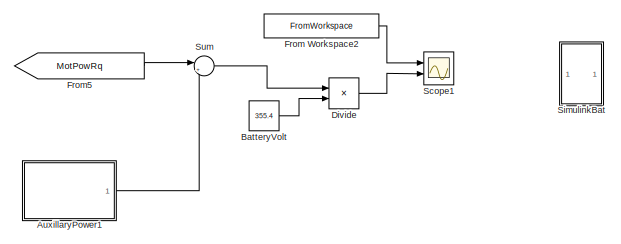
[diagram: root canvas - part 1/6, top left region]
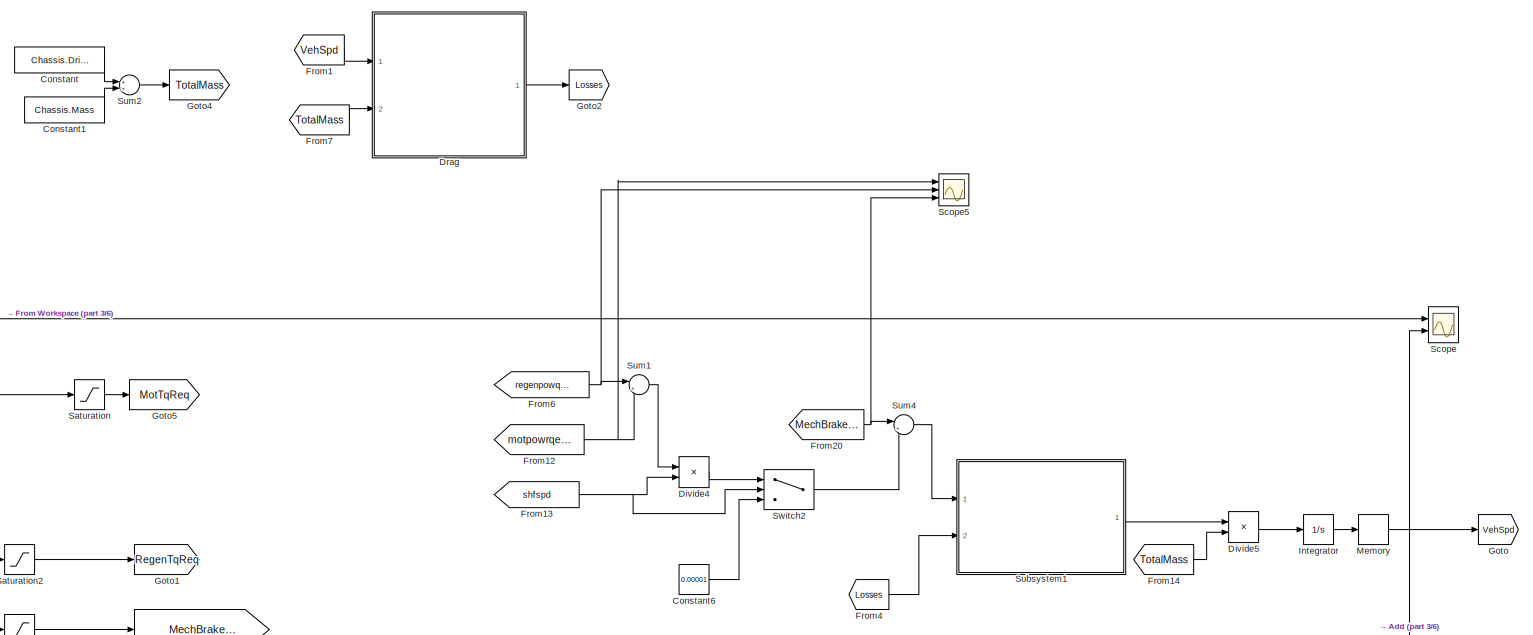
[diagram: root canvas - part 2/6, top center region]
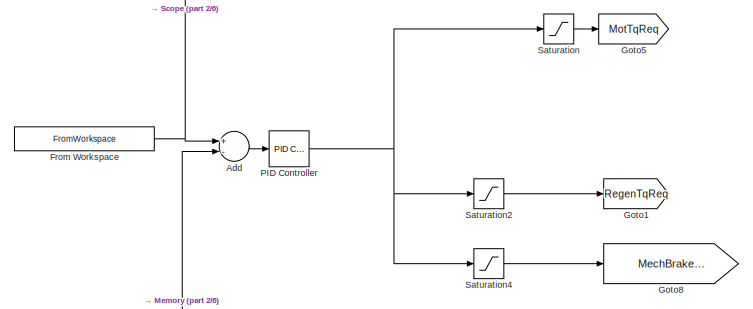
[diagram: root canvas - part 3/6, top left region]
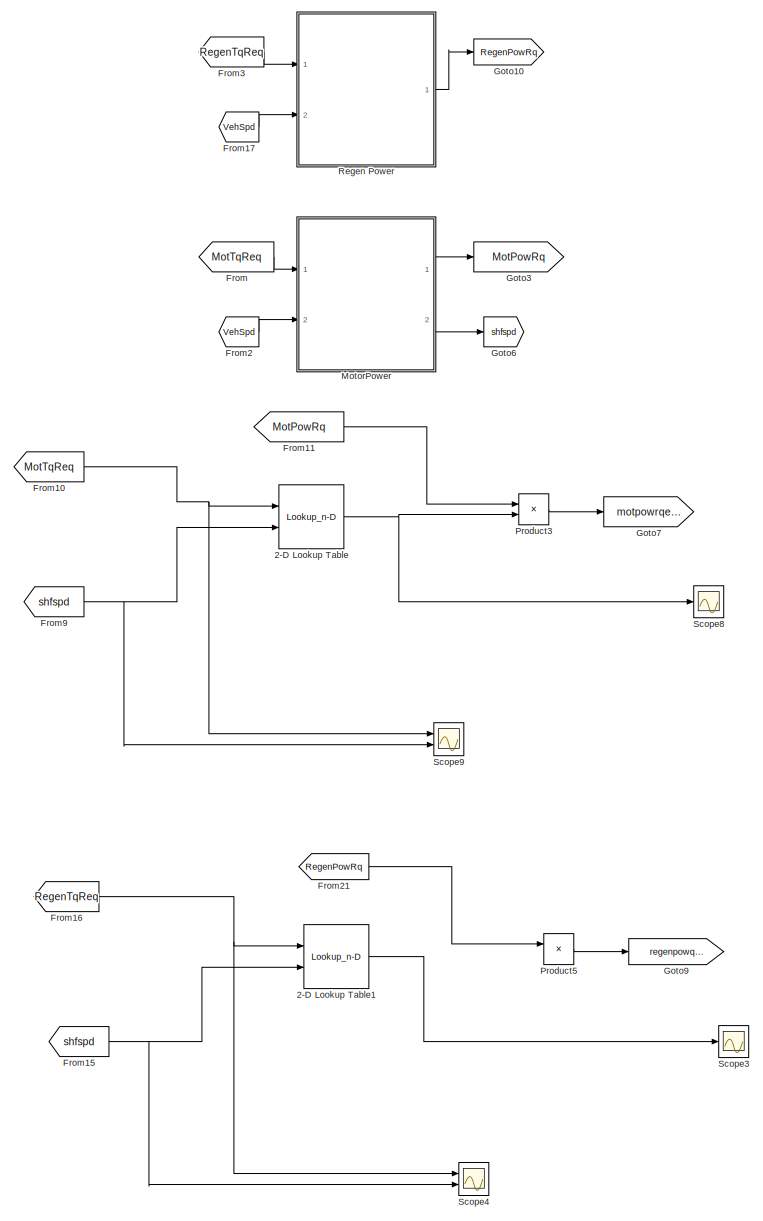
[diagram: root canvas - part 4/6, bottom right region]
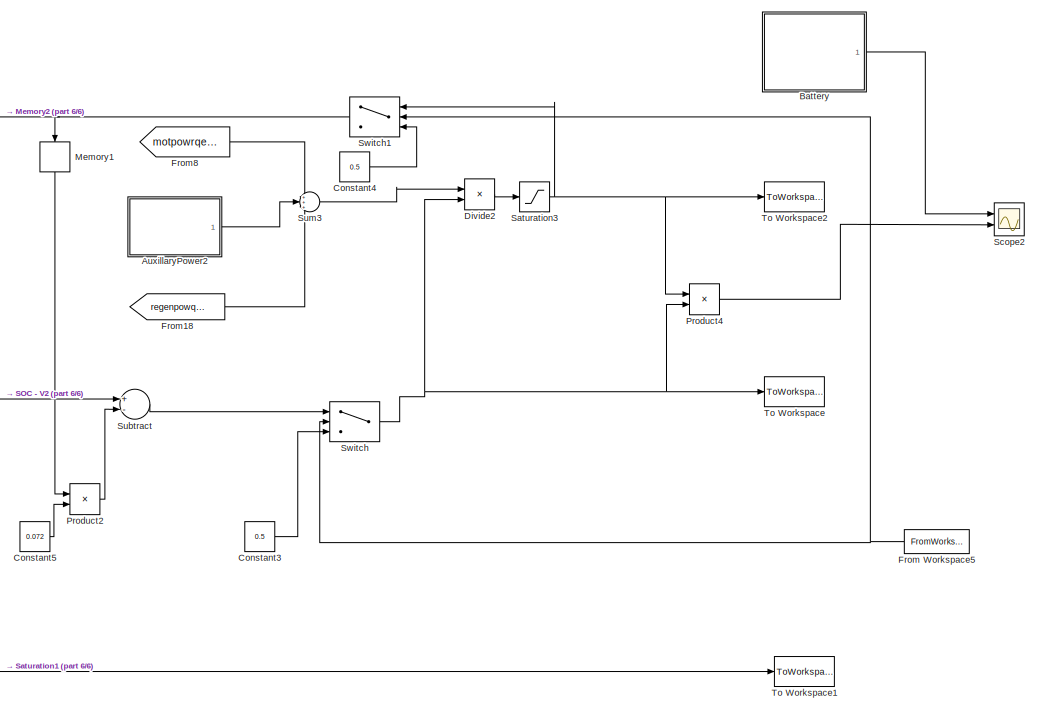
[diagram: root canvas - part 5/6, bottom center region]
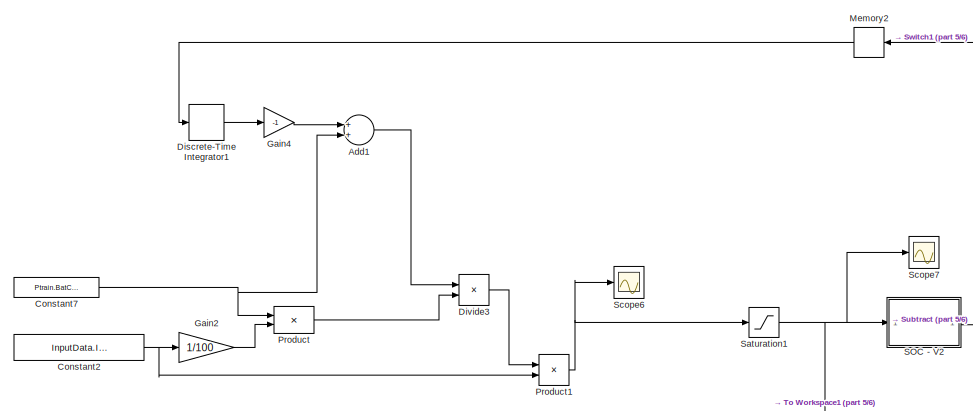
[diagram: root canvas - part 6/6, middle left region]
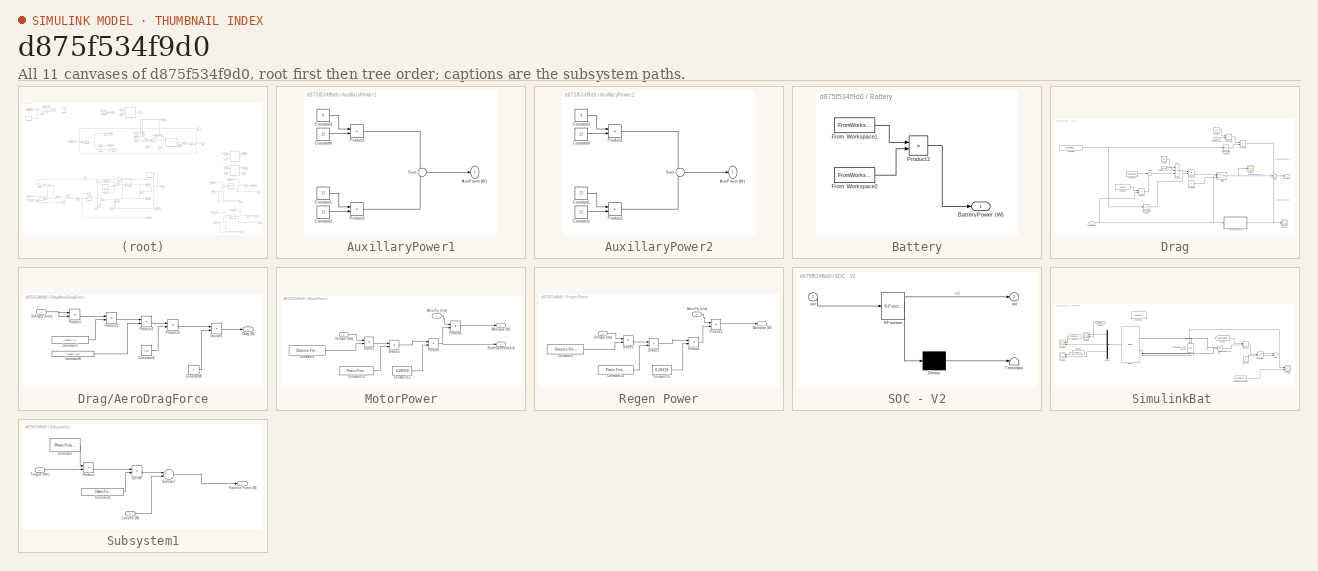
[diagram: thumbnail index - all 11 canvases of the model, root first then tree order]
MODEL slx_d875f534f9d0
KIND model
CONFIG AbsTol = auto
CONFIG EnableMultiTasking = off
CONFIG FixedStep = 0.01
CONFIG MaxStep = auto
CONFIG MinStep = auto
CONFIG RelTol = 1e-3
CONFIG SampleTimeConstraint = Unconstrained
CONFIG Solver = ode3
CONFIG SolverName = ode3
CONFIG StartTime = 0
CONFIG StopTime = InputData.TestData.Time_sec_(end)
BLOCK [Lookup_n-D] 2-D Lookup Table
  BreakpointsForDimension1 = [1:3]
  BreakpointsForDimension1Spacing = 10
  BreakpointsForDimension2 = [1:3]
  BreakpointsForDimension2Spacing = 10
  BreakpointsSpecification = Even spacing
  ExtrapMethod = Clip
  InternalRulePriority = Speed
  Ports = [2, 1]
  RndMeth = Simplest
  Table = Zsmooth1
BLOCK [Lookup_n-D] 2-D Lookup Table1
  BreakpointsForDimension1 = [1:3]
  BreakpointsForDimension1Spacing = 10
  BreakpointsForDimension2 = [1:3]
  BreakpointsForDimension2Spacing = 10
  BreakpointsSpecification = Even spacing
  ExtrapMethod = Clip
  InternalRulePriority = Speed
  Ports = [2, 1]
  RndMeth = Simplest
  Table = Zsmooth1
BLOCK [Sum] Add
  InputSameDT = off
  Inputs = +-
  OutDataTypeStr = Inherit: Inherit via internal rule
  Ports = [2, 1]
  SaturateOnIntegerOverflow = off
BLOCK [Sum] Add1
  InputSameDT = off
  OutDataTypeStr = Inherit: Inherit via internal rule
  Ports = [2, 1]
  SaturateOnIntegerOverflow = off
BLOCK [SubSystem] AuxillaryPower1
  Commented = on
  Ports = [0, 1]
  RequestExecContextInheritance = off
  Variant = off
BLOCK [Outport] AuxillaryPower1/AuxPower (W)
  IconDisplay = Port number
BLOCK [Constant] AuxillaryPower1/Constant1
  Value = 12
BLOCK [Constant] AuxillaryPower1/Constant2
  Value = 12
BLOCK [Constant] AuxillaryPower1/Constant3
  Value = 4
BLOCK [Constant] AuxillaryPower1/Constant4
  Value = 12
BLOCK [Product] AuxillaryPower1/Product1
  InputSameDT = off
  OutDataTypeStr = Inherit: Inherit via internal rule
  Ports = [2, 1]
  RndMeth = Floor
  SaturateOnIntegerOverflow = off
BLOCK [Product] AuxillaryPower1/Product2
  InputSameDT = off
  OutDataTypeStr = Inherit: Inherit via internal rule
  Ports = [2, 1]
  RndMeth = Floor
  SaturateOnIntegerOverflow = off
BLOCK [Sum] AuxillaryPower1/Sum
  IconShape = round
  InputSameDT = off
  Inputs = 2
  OutDataTypeStr = Inherit: Inherit via internal rule
  Ports = [2, 1]
  SaturateOnIntegerOverflow = off
BLOCK [SubSystem] AuxillaryPower2
  Ports = [0, 1]
  RequestExecContextInheritance = off
  Variant = off
BLOCK [Outport] AuxillaryPower2/AuxPower (W)
  IconDisplay = Port number
BLOCK [Constant] AuxillaryPower2/Constant1
  Value = 12
BLOCK [Constant] AuxillaryPower2/Constant2
  Value = 12
BLOCK [Constant] AuxillaryPower2/Constant3
  Value = 4
BLOCK [Constant] AuxillaryPower2/Constant4
  Value = 12
BLOCK [Product] AuxillaryPower2/Product1
  InputSameDT = off
  OutDataTypeStr = Inherit: Inherit via internal rule
  Ports = [2, 1]
  RndMeth = Floor
  SaturateOnIntegerOverflow = off
BLOCK [Product] AuxillaryPower2/Product2
  InputSameDT = off
  OutDataTypeStr = Inherit: Inherit via internal rule
  Ports = [2, 1]
  RndMeth = Floor
  SaturateOnIntegerOverflow = off
BLOCK [Sum] AuxillaryPower2/Sum
  IconShape = round
  InputSameDT = off
  Inputs = 2
  OutDataTypeStr = Inherit: Inherit via internal rule
  Ports = [2, 1]
  SaturateOnIntegerOverflow = off
BLOCK [SubSystem] Battery
  Ports = [0, 1]
  RequestExecContextInheritance = off
  Variant = off
BLOCK [Outport] Battery/BatteryPower (W)
  IconDisplay = Port number
BLOCK [FromWorkspace] Battery/From Workspace1
  SampleTime = 0
  VariableName = InputData.ExpectedHVVolt
  ZeroCross = on
BLOCK [FromWorkspace] Battery/From Workspace2
  SampleTime = 0
  VariableName = InputData.ExpectedHVCurr
  ZeroCross = on
BLOCK [Product] Battery/Product2
  InputSameDT = off
  OutDataTypeStr = Inherit: Inherit via internal rule
  Ports = [2, 1]
  RndMeth = Floor
  SaturateOnIntegerOverflow = off
BLOCK [Constant] BatteryVolt
  Commented = on
  Value = 355.4
BLOCK [Constant] Constant
  Value = Chassis.Driver
BLOCK [Constant] Constant1
  Value = Chassis.Mass
BLOCK [Constant] Constant2
  Value = InputData.InitialHVSOC
BLOCK [Constant] Constant3
  Value = 0.5
BLOCK [Constant] Constant4
  Value = 0.5
BLOCK [Constant] Constant5
  Value = 0.072
BLOCK [Constant] Constant6
  Value = 0.00001
BLOCK [Constant] Constant7
  Value = Ptrain.BatCap
BLOCK [DiscreteIntegrator] Discrete-Time Integrator1
  ICPrevOutput = DiscIntNeverNeededParam
  ICPrevScaledInput = DiscIntNeverNeededParam
  InitialCondition = Ptrain.BatCap-(Ptrain.BatCap*(InputData.InitialHVSOC/100))
  InitialConditionSetting = State (most efficient)
  Ports = [1, 1]
  SampleTime = -1
BLOCK [Product] Divide
  Commented = on
  InputSameDT = off
  Inputs = */
  OutDataTypeStr = Inherit: Inherit via internal rule
  Ports = [2, 1]
  RndMeth = Floor
  SaturateOnIntegerOverflow = off
BLOCK [Product] Divide2
  InputSameDT = off
  Inputs = */
  OutDataTypeStr = Inherit: Inherit via internal rule
  Ports = [2, 1]
  RndMeth = Floor
  SaturateOnIntegerOverflow = off
BLOCK [Product] Divide3
  InputSameDT = off
  Inputs = */
  OutDataTypeStr = Inherit: Inherit via internal rule
  Ports = [2, 1]
  RndMeth = Floor
  SaturateOnIntegerOverflow = off
BLOCK [Product] Divide4
  InputSameDT = off
  Inputs = */
  OutDataTypeStr = Inherit: Inherit via internal rule
  Ports = [2, 1]
  RndMeth = Floor
  SaturateOnIntegerOverflow = off
BLOCK [Product] Divide5
  InputSameDT = off
  Inputs = */
  OutDataTypeStr = Inherit: Inherit via internal rule
  Ports = [2, 1]
  RndMeth = Floor
  SaturateOnIntegerOverflow = off
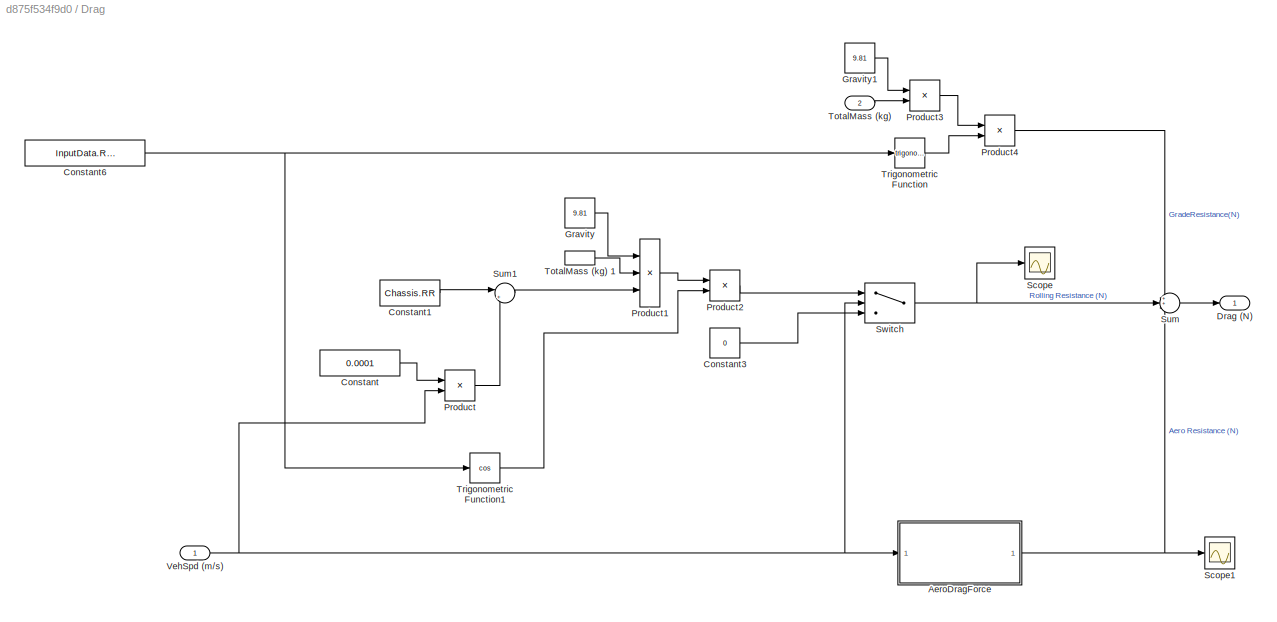
BLOCK [SubSystem] Drag
  Ports = [2, 1]
  RequestExecContextInheritance = off
  Variant = off
BLOCK [SubSystem] Drag/AeroDragForce
  Ports = [1, 1]
  RequestExecContextInheritance = off
  Variant = off
BLOCK [Constant] Drag/AeroDragForce/Constant4
  Value = 1.225
BLOCK [Constant] Drag/AeroDragForce/Constant6
  Value = Chassis.CD
BLOCK [Constant] Drag/AeroDragForce/Constant7
  Value = Chassis.FA
BLOCK [Constant] Drag/AeroDragForce/Constant8
  Value = 2
BLOCK [Product] Drag/AeroDragForce/Divide5
  InputSameDT = off
  Inputs = */
  OutDataTypeStr = Inherit: Inherit via internal rule
  Ports = [2, 1]
  RndMeth = Floor
  SaturateOnIntegerOverflow = off
BLOCK [Outport] Drag/AeroDragForce/Drag (N)
  IconDisplay = Port number
BLOCK [Product] Drag/AeroDragForce/Product
  InputSameDT = off
  OutDataTypeStr = Inherit: Inherit via internal rule
  Ports = [2, 1]
  RndMeth = Floor
  SaturateOnIntegerOverflow = off
BLOCK [Product] Drag/AeroDragForce/Product1
  InputSameDT = off
  OutDataTypeStr = Inherit: Inherit via internal rule
  Ports = [2, 1]
  RndMeth = Floor
  SaturateOnIntegerOverflow = off
BLOCK [Product] Drag/AeroDragForce/Product2
  InputSameDT = off
  OutDataTypeStr = Inherit: Inherit via internal rule
  Ports = [2, 1]
  RndMeth = Floor
  SaturateOnIntegerOverflow = off
BLOCK [Product] Drag/AeroDragForce/Product3
  InputSameDT = off
  OutDataTypeStr = Inherit: Inherit via internal rule
  Ports = [2, 1]
  RndMeth = Floor
  SaturateOnIntegerOverflow = off
BLOCK [Inport] Drag/AeroDragForce/VehSpd (m//s)
  IconDisplay = Port number
BLOCK [Constant] Drag/Constant
  Value = 0.0001
BLOCK [Constant] Drag/Constant1
  Value = Chassis.RR
BLOCK [Constant] Drag/Constant3
  Value = 0
BLOCK [Constant] Drag/Constant6
  Value = InputData.RoadGrade
BLOCK [Outport] Drag/Drag (N)
  IconDisplay = Port number
BLOCK [Constant] Drag/Gravity
  Value = 9.81
BLOCK [Constant] Drag/Gravity1
  Value = 9.81
BLOCK [Product] Drag/Product
  InputSameDT = off
  OutDataTypeStr = Inherit: Inherit via internal rule
  Ports = [2, 1]
  RndMeth = Floor
  SaturateOnIntegerOverflow = off
BLOCK [Product] Drag/Product1
  InputSameDT = off
  Inputs = 3
  OutDataTypeStr = Inherit: Inherit via internal rule
  Ports = [3, 1]
  RndMeth = Floor
  SaturateOnIntegerOverflow = off
BLOCK [Product] Drag/Product2
  InputSameDT = off
  OutDataTypeStr = Inherit: Inherit via internal rule
  Ports = [2, 1]
  RndMeth = Floor
  SaturateOnIntegerOverflow = off
BLOCK [Product] Drag/Product3
  InputSameDT = off
  OutDataTypeStr = Inherit: Inherit via internal rule
  Ports = [2, 1]
  RndMeth = Floor
  SaturateOnIntegerOverflow = off
BLOCK [Product] Drag/Product4
  InputSameDT = off
  OutDataTypeStr = Inherit: Inherit via internal rule
  Ports = [2, 1]
  RndMeth = Floor
  SaturateOnIntegerOverflow = off
BLOCK [Scope] Drag/Scope
  NumInputPorts = 1
  Ports = [1]
  ScopeSpecificationString = Simulink.scopes.TimeScopeBlockCfg('CurrentConfiguration', extmgr.ConfigurationSet(extmgr.Configuration('Core','General UI',true),extmgr.Configuration('Core','Source UI',true),extmgr.Configuration('Sources','WiredSimulink',true,'DataLoggingVariableName','ScopeData1'),extmgr.Configuration('Visuals','Time Domain',true,'SerializedDisplays',{struct('MinYLimReal','-14.66628','MaxYLimReal','131.99649','Y...<+1437ch>
BLOCK [Scope] Drag/Scope1
  NumInputPorts = 1
  Ports = [1]
  ScopeSpecificationString = Simulink.scopes.TimeScopeBlockCfg('CurrentConfiguration', extmgr.ConfigurationSet(extmgr.Configuration('Core','General UI',true),extmgr.Configuration('Core','Source UI',true),extmgr.Configuration('Sources','WiredSimulink',true,'DataLoggingVariableName','ScopeData1'),extmgr.Configuration('Visuals','Time Domain',true,'SerializedDisplays',{struct('MinYLimReal','-44.12921','MaxYLimReal','397.16291','Y...<+1441ch>
BLOCK [Sum] Drag/Sum
  IconShape = round
  InputSameDT = off
  Inputs = 3
  OutDataTypeStr = Inherit: Inherit via internal rule
  Ports = [3, 1]
  SaturateOnIntegerOverflow = off
BLOCK [Sum] Drag/Sum1
  IconShape = round
  InputSameDT = off
  Inputs = |++
  OutDataTypeStr = Inherit: Inherit via internal rule
  Ports = [2, 1]
  SaturateOnIntegerOverflow = off
BLOCK [Switch] Drag/Switch
  Criteria = u2 > Threshold
  InputSameDT = off
  SaturateOnIntegerOverflow = off
  Threshold = 0.4
BLOCK [Inport] Drag/TotalMass (kg) 
  IconDisplay = Port number
  Port = 2
BLOCK [InportShadow] Drag/TotalMass (kg) 1
  IconDisplay = Port number
  Port = 2
BLOCK [Trigonometry] Drag/Trigonometric Function
  Ports = [1, 1]
BLOCK [Trigonometry] Drag/Trigonometric Function1
  Operator = cos
  Ports = [1, 1]
BLOCK [Inport] Drag/VehSpd (m//s)
  IconDisplay = Port number
BLOCK [From] From
  GotoTag = MotTqReq
BLOCK [FromWorkspace] From Workspace
  SampleTime = SimSetup.StepSize
  VariableName = InputData.ExpectedVel
  ZeroCross = on
BLOCK [FromWorkspace] From Workspace2
  Commented = on
  SampleTime = 0
  VariableName = InputData.ExpectedHVCurr
  ZeroCross = on
BLOCK [FromWorkspace] From Workspace5
  SampleTime = 0
  VariableName = Ptrain.enable
  ZeroCross = on
BLOCK [From] From1
  GotoTag = VehSpd
BLOCK [From] From10
  GotoTag = MotTqReq
BLOCK [From] From11
  GotoTag = MotPowRq
BLOCK [From] From12
  GotoTag = motpowrqeff
BLOCK [From] From13
  GotoTag = shfspd
BLOCK [From] From14
  GotoTag = TotalMass
BLOCK [From] From15
  GotoTag = shfspd
BLOCK [From] From16
  GotoTag = RegenTqReq
BLOCK [From] From17
  GotoTag = VehSpd
BLOCK [From] From18
  GotoTag = regenpowqeff
BLOCK [From] From2
  GotoTag = VehSpd
BLOCK [From] From20
  GotoTag = MechBrakeTqReq
BLOCK [From] From21
  GotoTag = RegenPowRq
BLOCK [From] From3
  GotoTag = RegenTqReq
BLOCK [From] From4
  GotoTag = Losses
BLOCK [From] From5
  Commented = on
  GotoTag = MotPowRq
BLOCK [From] From6
  GotoTag = regenpowqeff
BLOCK [From] From7
  GotoTag = TotalMass
BLOCK [From] From8
  GotoTag = motpowrqeff
BLOCK [From] From9
  GotoTag = shfspd
BLOCK [Gain] Gain2
  Gain = 1/100
  OutDataTypeStr = Inherit: Inherit via internal rule
  ParamDataTypeStr = Inherit: Inherit via internal rule
  SaturateOnIntegerOverflow = off
BLOCK [Gain] Gain4
  Gain = -1
  OutDataTypeStr = Inherit: Inherit via internal rule
  ParamDataTypeStr = Inherit: Inherit via internal rule
  SaturateOnIntegerOverflow = off
BLOCK [Goto] Goto
  GotoTag = VehSpd
BLOCK [Goto] Goto1
  GotoTag = RegenTqReq
BLOCK [Goto] Goto10
  GotoTag = RegenPowRq
BLOCK [Goto] Goto2
  GotoTag = Losses
BLOCK [Goto] Goto3
  GotoTag = MotPowRq
BLOCK [Goto] Goto4
  GotoTag = TotalMass
BLOCK [Goto] Goto5
  GotoTag = MotTqReq
BLOCK [Goto] Goto6
  GotoTag = shfspd
BLOCK [Goto] Goto7
  GotoTag = motpowrqeff
BLOCK [Goto] Goto8
  GotoTag = MechBrakeTqReq
BLOCK [Goto] Goto9
  GotoTag = regenpowqeff
BLOCK [Integrator] Integrator
  Ports = [1, 1]
BLOCK [Memory] Memory
  InheritSampleTime = on
BLOCK [Memory] Memory1
BLOCK [Memory] Memory2
BLOCK [SubSystem] MotorPower
  Ports = [2, 2]
  RequestExecContextInheritance = off
  Variant = off
BLOCK [Constant] MotorPower/Constant14
  Value = Ptrain.Finaldrive
BLOCK [Constant] MotorPower/Constant15
  Value = 6.28319
BLOCK [Constant] MotorPower/Constant3
  Value = Chassis.FrontCirc
BLOCK [Product] MotorPower/Divide2
  InputSameDT = off
  Inputs = */
  OutDataTypeStr = Inherit: Inherit via internal rule
  Ports = [2, 1]
  RndMeth = Floor
  SaturateOnIntegerOverflow = off
BLOCK [Product] MotorPower/Divide3
  InputSameDT = off
  Inputs = **
  OutDataTypeStr = Inherit: Inherit via internal rule
  Ports = [2, 1]
  RndMeth = Floor
  SaturateOnIntegerOverflow = off
BLOCK [Inport] MotorPower/MotorTq (n//m)
  IconDisplay = Port number
BLOCK [Outport] MotorPower/Motorpwr (W)
  IconDisplay = Port number
BLOCK [Product] MotorPower/Product
  InputSameDT = off
  OutDataTypeStr = Inherit: Inherit via internal rule
  Ports = [2, 1]
  RndMeth = Floor
  SaturateOnIntegerOverflow = off
BLOCK [Product] MotorPower/Product1
  InputSameDT = off
  OutDataTypeStr = Inherit: Inherit via internal rule
  Ports = [2, 1]
  RndMeth = Floor
  SaturateOnIntegerOverflow = off
BLOCK [Outport] MotorPower/ShaftSpeed(rad//s) 
  IconDisplay = Port number
  Port = 2
BLOCK [Inport] MotorPower/Vehspd (m//s) 
  IconDisplay = Port number
  Port = 2
BLOCK [Reference] PID Controller  REF=simulink/Continuous/PID Controller
  Ports = [1, 1]
  SourceBlock = simulink/Continuous/PID Controller
  SourceProductBaseCode = SL
  SourceProductName = Simulink
  SourceType = PID 1dof
BLOCK [Product] Product
  InputSameDT = off
  OutDataTypeStr = Inherit: Inherit via internal rule
  Ports = [2, 1]
  RndMeth = Floor
  SaturateOnIntegerOverflow = off
BLOCK [Product] Product1
  InputSameDT = off
  OutDataTypeStr = Inherit: Inherit via internal rule
  Ports = [2, 1]
  RndMeth = Floor
  SaturateOnIntegerOverflow = off
BLOCK [Product] Product2
  InputSameDT = off
  OutDataTypeStr = Inherit: Inherit via internal rule
  Ports = [2, 1]
  RndMeth = Floor
  SaturateOnIntegerOverflow = off
BLOCK [Product] Product3
  InputSameDT = off
  OutDataTypeStr = Inherit: Inherit via internal rule
  Ports = [2, 1]
  RndMeth = Floor
  SaturateOnIntegerOverflow = off
BLOCK [Product] Product4
  InputSameDT = off
  OutDataTypeStr = Inherit: Inherit via internal rule
  Ports = [2, 1]
  RndMeth = Floor
  SaturateOnIntegerOverflow = off
BLOCK [Product] Product5
  InputSameDT = off
  OutDataTypeStr = Inherit: Inherit via internal rule
  Ports = [2, 1]
  RndMeth = Floor
  SaturateOnIntegerOverflow = off
BLOCK [SubSystem] Regen Power
  Ports = [2, 1]
  RequestExecContextInheritance = off
  Variant = off
BLOCK [Constant] Regen Power/Constant14
  Value = Ptrain.Finaldrive
BLOCK [Constant] Regen Power/Constant15
  Value = 6.28319
BLOCK [Constant] Regen Power/Constant3
  Value = Chassis.FrontCirc
BLOCK [Product] Regen Power/Divide2
  InputSameDT = off
  Inputs = */
  OutDataTypeStr = Inherit: Inherit via internal rule
  Ports = [2, 1]
  RndMeth = Floor
  SaturateOnIntegerOverflow = off
BLOCK [Product] Regen Power/Divide3
  InputSameDT = off
  Inputs = **
  OutDataTypeStr = Inherit: Inherit via internal rule
  Ports = [2, 1]
  RndMeth = Floor
  SaturateOnIntegerOverflow = off
BLOCK [Inport] Regen Power/MotorTq (n//m)
  IconDisplay = Port number
BLOCK [Outport] Regen Power/Motorpwr (W)
  IconDisplay = Port number
BLOCK [Product] Regen Power/Product
  InputSameDT = off
  OutDataTypeStr = Inherit: Inherit via internal rule
  Ports = [2, 1]
  RndMeth = Floor
  SaturateOnIntegerOverflow = off
BLOCK [Product] Regen Power/Product1
  InputSameDT = off
  OutDataTypeStr = Inherit: Inherit via internal rule
  Ports = [2, 1]
  RndMeth = Floor
  SaturateOnIntegerOverflow = off
BLOCK [Inport] Regen Power/Vehspd (m//s) 
  IconDisplay = Port number
  Port = 2
BLOCK [SubSystem] SOC - V2
  ErrorFcn = Stateflow.Translate.translate
  PermitHierarchicalResolution = ExplicitOnly
  Ports = [1, 1]
  RequestExecContextInheritance = off
  SFBlockType = MATLAB Function
  TreatAsAtomicUnit = on
  Variant = off
BLOCK [Demux] SOC - V2/ Demux 
  Outputs = 1
  Ports = [1, 1]
BLOCK [S-Function] SOC - V2/ SFunction 
  EnableBusSupport = on
  FunctionName = sf_sfun
  PortCounts = [1 2]
  Ports = [1, 2]
  SFcnIsStateOwnerBlock = off
  SFunctionDeploymentMode = off
  Tag = Stateflow S-Function m_0511_2_21 2
BLOCK [Terminator] SOC - V2/ Terminator 
BLOCK [Inport] SOC - V2/soc
  IconDisplay = Port number
BLOCK [Outport] SOC - V2/vol
  IconDisplay = Port number
BLOCK [Saturate] Saturation
  InputPortMap = u0
  LowerLimit = 0
  Ports = [1, 1]
  UpperLimit = 444
BLOCK [Saturate] Saturation1
  InputPortMap = u0
  LowerLimit = 0
  Ports = [1, 1]
  UpperLimit = 100
BLOCK [Saturate] Saturation2
  InputPortMap = u0
  LowerLimit = -65
  Ports = [1, 1]
  UpperLimit = 0
BLOCK [Saturate] Saturation3
  InputPortMap = u0
  LowerLimit = -1000
  Ports = [1, 1]
  UpperLimit = 1000
BLOCK [Saturate] Saturation4
  InputPortMap = u0
  LowerLimit = -400
  Ports = [1, 1]
  UpperLimit = 0
BLOCK [Scope] Scope
  NumInputPorts = 2
  Ports = [2]
  ScopeSpecificationString = Simulink.scopes.TimeScopeBlockCfg('CurrentConfiguration', extmgr.ConfigurationSet(extmgr.Configuration('Core','General UI',true),extmgr.Configuration('Core','Source UI',true),extmgr.Configuration('Sources','WiredSimulink',true),extmgr.Configuration('Visuals','Time Domain',true,'SerializedDisplays',{struct('MinYLimReal','-4.47268','MaxYLimReal','40.25412','YLabelReal','','MinYLimMag','0.00000','Max...<+1418ch>
BLOCK [Scope] Scope1
  Commented = on
  NumInputPorts = 2
  Ports = [2]
  ScopeSpecificationString = Simulink.scopes.TimeScopeBlockCfg('CurrentConfiguration', extmgr.ConfigurationSet(extmgr.Configuration('Core','General UI',true),extmgr.Configuration('Core','Source UI',true),extmgr.Configuration('Sources','WiredSimulink',true,'DataLoggingVariableName','ScopeData5'),extmgr.Configuration('Visuals','Time Domain',true,'SerializedDisplays',{struct('MinYLimReal','-135.88887','MaxYLimReal','256.16987','...<+1493ch>
BLOCK [Scope] Scope2
  NumInputPorts = 2
  Ports = [2]
  ScopeSpecificationString = Simulink.scopes.TimeScopeBlockCfg('CurrentConfiguration', extmgr.ConfigurationSet(extmgr.Configuration('Core','General UI',true),extmgr.Configuration('Core','Source UI',true),extmgr.Configuration('Sources','WiredSimulink',true,'DataLoggingVariableName','ScopeData2'),extmgr.Configuration('Visuals','Time Domain',true,'SerializedDisplays',{struct('MinYLimReal','-36506.95519','MaxYLimReal','87654.9082...<+1503ch>
BLOCK [Scope] Scope3
  NumInputPorts = 1
  Ports = [1]
  ScopeSpecificationString = Simulink.scopes.TimeScopeBlockCfg('CurrentConfiguration', extmgr.ConfigurationSet(extmgr.Configuration('Core','General UI',true),extmgr.Configuration('Core','Source UI',true),extmgr.Configuration('Sources','WiredSimulink',true,'DataLoggingVariableName','ScopeData3'),extmgr.Configuration('Visuals','Time Domain',true,'SerializedDisplays',{struct('MinYLimReal','-1.14218','MaxYLimReal','1.19286','YLab...<+1427ch>
BLOCK [Scope] Scope4
  NumInputPorts = 2
  Ports = [2]
  ScopeSpecificationString = Simulink.scopes.TimeScopeBlockCfg('CurrentConfiguration', extmgr.ConfigurationSet(extmgr.Configuration('Core','General UI',true),extmgr.Configuration('Core','Source UI',true),extmgr.Configuration('Sources','WiredSimulink',true,'DataLoggingVariableName','ScopeData4'),extmgr.Configuration('Visuals','Time Domain',true,'SerializedDisplays',{struct('MinYLimReal','-200.63518','MaxYLimReal','547.71904','...<+1762ch>
BLOCK [Scope] Scope5
  NumInputPorts = 3
  Ports = [3]
  ScopeSpecificationString = Simulink.scopes.TimeScopeBlockCfg('CurrentConfiguration', extmgr.ConfigurationSet(extmgr.Configuration('Core','General UI',true),extmgr.Configuration('Core','Source UI',true),extmgr.Configuration('Sources','WiredSimulink',true,'DataLoggingVariableName','ScopeData5'),extmgr.Configuration('Visuals','Time Domain',true,'SerializedDisplays',{struct('MinYLimReal','-6340.30206','MaxYLimReal','-531.90398'...<+1510ch>
BLOCK [Scope] Scope6
  NumInputPorts = 1
  Ports = [1]
  ScopeSpecificationString = Simulink.scopes.TimeScopeBlockCfg('CurrentConfiguration', extmgr.ConfigurationSet(extmgr.Configuration('Core','General UI',true),extmgr.Configuration('Core','Source UI',true),extmgr.Configuration('Sources','WiredSimulink',true,'DataLoggingVariableName','ScopeData1'),extmgr.Configuration('Visuals','Time Domain',true,'SerializedDisplays',{struct('MinYLimReal','39.36943','MaxYLimReal','64.87895','YLa...<+1373ch>
BLOCK [Scope] Scope7
  NumInputPorts = 1
  Ports = [1]
  ScopeSpecificationString = Simulink.scopes.TimeScopeBlockCfg('CurrentConfiguration', extmgr.ConfigurationSet(extmgr.Configuration('Core','General UI',true),extmgr.Configuration('Core','Source UI',true),extmgr.Configuration('Sources','WiredSimulink',true,'DataLoggingVariableName','ScopeData6'),extmgr.Configuration('Visuals','Time Domain',true,'SerializedDisplays',{struct('MinYLimReal','12.60314','MaxYLimReal','40.84854','YLa...<+1376ch>
BLOCK [Scope] Scope8
  NumInputPorts = 1
  Ports = [1]
  ScopeSpecificationString = Simulink.scopes.TimeScopeBlockCfg('CurrentConfiguration', extmgr.ConfigurationSet(extmgr.Configuration('Core','General UI',true),extmgr.Configuration('Core','Source UI',true),extmgr.Configuration('Sources','WiredSimulink',true,'DataLoggingVariableName','ScopeData1'),extmgr.Configuration('Visuals','Time Domain',true,'SerializedDisplays',{struct('MinYLimReal','-1.14218','MaxYLimReal','1.19286','YLab...<+1427ch>
BLOCK [Scope] Scope9
  NumInputPorts = 2
  Ports = [2]
  ScopeSpecificationString = Simulink.scopes.TimeScopeBlockCfg('CurrentConfiguration', extmgr.ConfigurationSet(extmgr.Configuration('Core','General UI',true),extmgr.Configuration('Core','Source UI',true),extmgr.Configuration('Sources','WiredSimulink',true,'DataLoggingVariableName','ScopeData1'),extmgr.Configuration('Visuals','Time Domain',true,'SerializedDisplays',{struct('MinYLimReal','-200.63518','MaxYLimReal','547.71904','...<+1762ch>
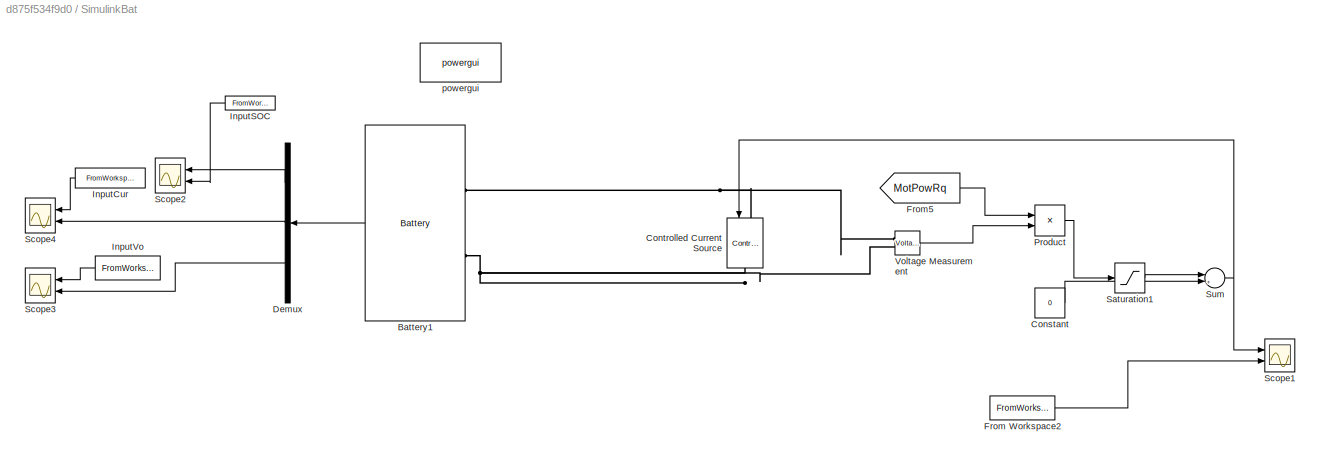
BLOCK [SubSystem] SimulinkBat 
  Commented = on
  Ports = []
  RequestExecContextInheritance = off
  Variant = off
BLOCK [Reference] SimulinkBat /Battery1  REF=electricdrivelib/Extra Sources/Battery
  Ports = [0, 1, 0, 0, 0, 2]
  SourceBlock = electricdrivelib/Extra Sources/Battery
  SourceProductBaseCode = PS
  SourceProductName = Simscape Power Systems
  SourceType = Battery
BLOCK [Constant] SimulinkBat /Constant
  Value = 0
BLOCK [Reference] SimulinkBat /Controlled Current Source  REF=powerlib/Electrical
Sources/Controlled Current Source
  Ports = [1, 0, 0, 0, 0, 1, 1]
  SourceBlock = powerlib/Electrical\nSources/Controlled Current Source
  SourceProductBaseCode = PS
  SourceProductName = Simscape Power Systems
  SourceType = Controlled Current Source
BLOCK [Demux] SimulinkBat /Demux
  DisplayOption = bar
  Outputs = 3
  Ports = [1, 3]
BLOCK [FromWorkspace] SimulinkBat /From Workspace2
  SampleTime = 0
  VariableName = InputData.ExpectedHVCurr
  ZeroCross = on
BLOCK [From] SimulinkBat /From5
  GotoTag = MotPowRq
BLOCK [FromWorkspace] SimulinkBat /InputCur 
  SampleTime = 0
  VariableName = InputData.ExpectedHVCurr
  ZeroCross = on
BLOCK [FromWorkspace] SimulinkBat /InputSOC
  SampleTime = 0
  VariableName = InputData.ExpectedHVSOC
  ZeroCross = on
BLOCK [FromWorkspace] SimulinkBat /InputVo
  SampleTime = 0
  VariableName = InputData.ExpectedHVVolt
  ZeroCross = on
BLOCK [Product] SimulinkBat /Product
  InputSameDT = off
  Inputs = */
  OutDataTypeStr = Inherit: Inherit via internal rule
  Ports = [2, 1]
  RndMeth = Floor
  SaturateOnIntegerOverflow = off
BLOCK [Saturate] SimulinkBat /Saturation1
  InputPortMap = u0
  LowerLimit = -200
  Ports = [1, 1]
  UpperLimit = 444
BLOCK [Scope] SimulinkBat /Scope1
  NumInputPorts = 2
  Ports = [2]
  ScopeSpecificationString = Simulink.scopes.TimeScopeBlockCfg('CurrentConfiguration', extmgr.ConfigurationSet(extmgr.Configuration('Core','General UI',true),extmgr.Configuration('Core','Source UI',true),extmgr.Configuration('Sources','WiredSimulink',true,'DataLoggingVariableName','ScopeData1'),extmgr.Configuration('Visuals','Time Domain',true,'SerializedDisplays',{struct('MinYLimReal','18.86669','MaxYLimReal','64.07249','YLa...<+1457ch>
BLOCK [Scope] SimulinkBat /Scope2
  NumInputPorts = 2
  Ports = [2]
  ScopeSpecificationString = Simulink.scopes.TimeScopeBlockCfg('CurrentConfiguration', extmgr.ConfigurationSet(extmgr.Configuration('Core','General UI',true),extmgr.Configuration('Core','Source UI',true),extmgr.Configuration('Sources','WiredSimulink',true,'DataLoggingVariableName','ScopeData2'),extmgr.Configuration('Visuals','Time Domain',true,'SerializedDisplays',{struct('MinYLimReal','11.123','MaxYLimReal','41.01304','YLabe...<+1429ch>
BLOCK [Scope] SimulinkBat /Scope3
  NumInputPorts = 2
  Ports = [2]
  ScopeSpecificationString = Simulink.scopes.TimeScopeBlockCfg('CurrentConfiguration', extmgr.ConfigurationSet(extmgr.Configuration('Core','General UI',true),extmgr.Configuration('Core','Source UI',true),extmgr.Configuration('Sources','WiredSimulink',true,'DataLoggingVariableName','ScopeData3'),extmgr.Configuration('Visuals','Time Domain',true,'SerializedDisplays',{struct('MinYLimReal','-53.16056','MaxYLimReal','477.48866','Y...<+1438ch>
BLOCK [Scope] SimulinkBat /Scope4
  NumInputPorts = 2
  Ports = [2]
  ScopeSpecificationString = Simulink.scopes.TimeScopeBlockCfg('CurrentConfiguration', extmgr.ConfigurationSet(extmgr.Configuration('Core','General UI',true),extmgr.Configuration('Core','Source UI',true),extmgr.Configuration('Sources','WiredSimulink',true,'DataLoggingVariableName','ScopeData4'),extmgr.Configuration('Visuals','Time Domain',true,'SerializedDisplays',{struct('MinYLimReal','-123.56059','MaxYLimReal','150.28229','...<+1419ch>
BLOCK [Sum] SimulinkBat /Sum
  IconShape = round
  InputSameDT = off
  Inputs = |++
  OutDataTypeStr = Inherit: Inherit via internal rule
  Ports = [2, 1]
  SaturateOnIntegerOverflow = off
BLOCK [Reference] SimulinkBat /Voltage Measurement  REF=powerlib/Measurements/Voltage Measurement
  Ports = [0, 1, 0, 0, 0, 2]
  SourceBlock = powerlib/Measurements/Voltage Measurement
  SourceProductBaseCode = PS
  SourceProductName = Simscape Power Systems
  SourceType = Voltage Measurement
  UserDataPersistent = on
BLOCK [Reference] SimulinkBat /powergui  REF=powerlib/powergui
  Ports = []
  Priority = 1
  SourceBlock = powerlib/powergui
  SourceProductBaseCode = PS
  SourceProductName = Simscape Power Systems
  SourceType = PSB option menu block
BLOCK [SubSystem] Subsystem1
  Ports = [2, 1]
  RequestExecContextInheritance = off
  Variant = off
BLOCK [Constant] Subsystem1/Constant
  Value = Ptrain.Finaldrive
BLOCK [Constant] Subsystem1/Constant1
  Value = Chassis.FrontDiameter/2
BLOCK [Product] Subsystem1/Divide
  InputSameDT = off
  Inputs = */
  OutDataTypeStr = Inherit: Inherit via internal rule
  Ports = [2, 1]
  RndMeth = Floor
  SaturateOnIntegerOverflow = off
BLOCK [Inport] Subsystem1/Losses (N)
  IconDisplay = Port number
  Port = 2
BLOCK [Product] Subsystem1/Product
  InputSameDT = off
  OutDataTypeStr = Inherit: Inherit via internal rule
  Ports = [2, 1]
  RndMeth = Floor
  SaturateOnIntegerOverflow = off
BLOCK [Sum] Subsystem1/Subtract
  InputSameDT = off
  Inputs = +-
  OutDataTypeStr = Inherit: Inherit via internal rule
  Ports = [2, 1]
  SaturateOnIntegerOverflow = off
BLOCK [Inport] Subsystem1/Torque (Nm)
  IconDisplay = Port number
BLOCK [Outport] Subsystem1/Tractive Force (N)
  IconDisplay = Port number
BLOCK [Sum] Subtract
  InputSameDT = off
  Inputs = +-
  OutDataTypeStr = Inherit: Inherit via internal rule
  Ports = [2, 1]
  SaturateOnIntegerOverflow = off
BLOCK [Sum] Sum
  Commented = on
  IconShape = round
  InputSameDT = off
  Inputs = |++
  OutDataTypeStr = Inherit: Inherit via internal rule
  Ports = [2, 1]
  SaturateOnIntegerOverflow = off
BLOCK [Sum] Sum1
  IconShape = round
  InputSameDT = off
  Inputs = |++
  OutDataTypeStr = Inherit: Inherit via internal rule
  Ports = [2, 1]
  SaturateOnIntegerOverflow = off
BLOCK [Sum] Sum2
  IconShape = round
  InputSameDT = off
  Inputs = 2
  OutDataTypeStr = Inherit: Inherit via internal rule
  Ports = [2, 1]
  SaturateOnIntegerOverflow = off
BLOCK [Sum] Sum3
  IconShape = round
  InputSameDT = off
  Inputs = +++
  OutDataTypeStr = Inherit: Inherit via internal rule
  Ports = [3, 1]
  SaturateOnIntegerOverflow = off
BLOCK [Sum] Sum4
  IconShape = round
  InputSameDT = off
  Inputs = |++
  OutDataTypeStr = Inherit: Inherit via internal rule
  Ports = [2, 1]
  SaturateOnIntegerOverflow = off
BLOCK [Switch] Switch
  InputSameDT = off
  SaturateOnIntegerOverflow = off
  Threshold = 1
BLOCK [Switch] Switch1
  InputSameDT = off
  SaturateOnIntegerOverflow = off
  Threshold = 1
BLOCK [Switch] Switch2
  Criteria = u2 ~= 0
  InputSameDT = off
  SaturateOnIntegerOverflow = off
BLOCK [ToWorkspace] To Workspace
  FixptAsFi = on
  MaxDataPoints = inf
  Ports = [1]
  SampleTime = InputData.SampleRate
  Save2DSignal = 3-D array (concatenate along third dimension)
  SaveFormat = Timeseries
  VariableName = Outputvolt
BLOCK [ToWorkspace] To Workspace1
  FixptAsFi = on
  MaxDataPoints = inf
  Ports = [1]
  SampleTime = InputData.SampleRate
  Save2DSignal = 3-D array (concatenate along third dimension)
  SaveFormat = Timeseries
  VariableName = Outputsoc
BLOCK [ToWorkspace] To Workspace2
  FixptAsFi = on
  MaxDataPoints = inf
  Ports = [1]
  SampleTime = InputData.SampleRate
  Save2DSignal = 3-D array (concatenate along third dimension)
  SaveFormat = Timeseries
  VariableName = Outputcur
LINE 2-D Lookup Table1:1 -> Scope3:1
NET 2-D Lookup Table:1 -> Product3:2, Scope8:1
LINE Add1:1 -> Divide3:1
LINE Add:1 -> PID Controller:1
LINE AuxillaryPower1/Constant1:1 -> AuxillaryPower1/Product2:1
LINE AuxillaryPower1/Constant2:1 -> AuxillaryPower1/Product2:2
LINE AuxillaryPower1/Constant3:1 -> AuxillaryPower1/Product1:1
LINE AuxillaryPower1/Constant4:1 -> AuxillaryPower1/Product1:2
LINE AuxillaryPower1/Product1:1 -> AuxillaryPower1/Sum:1
LINE AuxillaryPower1/Product2:1 -> AuxillaryPower1/Sum:2
LINE AuxillaryPower1/Sum:1 -> AuxillaryPower1/AuxPower (W):1
LINE AuxillaryPower1:1 -> Sum:2
LINE AuxillaryPower2/Constant1:1 -> AuxillaryPower2/Product2:1
LINE AuxillaryPower2/Constant2:1 -> AuxillaryPower2/Product2:2
LINE AuxillaryPower2/Constant3:1 -> AuxillaryPower2/Product1:1
LINE AuxillaryPower2/Constant4:1 -> AuxillaryPower2/Product1:2
LINE AuxillaryPower2/Product1:1 -> AuxillaryPower2/Sum:1
LINE AuxillaryPower2/Product2:1 -> AuxillaryPower2/Sum:2
LINE AuxillaryPower2/Sum:1 -> AuxillaryPower2/AuxPower (W):1
LINE AuxillaryPower2:1 -> Sum3:2
LINE Battery/From Workspace1:1 -> Battery/Product2:1
LINE Battery/From Workspace2:1 -> Battery/Product2:2
LINE Battery/Product2:1 -> Battery/BatteryPower (W):1
LINE Battery:1 -> Scope2:1
LINE BatteryVolt:1 -> Divide:2
LINE Constant1:1 -> Sum2:2
NET Constant2:1 -> Gain2:1, Product1:2
LINE Constant3:1 -> Switch:3
LINE Constant4:1 -> Switch1:3
LINE Constant5:1 -> Product2:2
LINE Constant6:1 -> Switch2:3
NET Constant7:1 -> Add1:2, Product:1
LINE Constant:1 -> Sum2:1
LINE Discrete-Time Integrator1:1 -> Gain4:1
LINE Divide2:1 -> Saturation3:1
LINE Divide3:1 -> Product1:1
LINE Divide4:1 -> Switch2:1
LINE Divide5:1 -> Integrator:1
LINE Divide:1 -> Scope1:2
LINE Drag/AeroDragForce/Constant4:1 -> Drag/AeroDragForce/Product3:2
LINE Drag/AeroDragForce/Constant6:1 -> Drag/AeroDragForce/Product2:2
LINE Drag/AeroDragForce/Constant7:1 -> Drag/AeroDragForce/Product1:2
LINE Drag/AeroDragForce/Constant8:1 -> Drag/AeroDragForce/Divide5:2
LINE Drag/AeroDragForce/Divide5:1 -> Drag/AeroDragForce/Drag (N):1
LINE Drag/AeroDragForce/Product1:1 -> Drag/AeroDragForce/Product2:1
LINE Drag/AeroDragForce/Product2:1 -> Drag/AeroDragForce/Product3:1
LINE Drag/AeroDragForce/Product3:1 -> Drag/AeroDragForce/Divide5:1
LINE Drag/AeroDragForce/Product:1 -> Drag/AeroDragForce/Product1:1
NET Drag/AeroDragForce/VehSpd (m//s):1 -> Drag/AeroDragForce/Product:1, Drag/AeroDragForce/Product:2
NET Drag/AeroDragForce:1 -> Drag/Scope1:1, Drag/Sum:3
LINE Drag/Constant1:1 -> Drag/Sum1:1
LINE Drag/Constant3:1 -> Drag/Switch:3
NET Drag/Constant6:1 -> Drag/Trigonometric Function1:1, Drag/Trigonometric Function:1
LINE Drag/Constant:1 -> Drag/Product:1
LINE Drag/Gravity1:1 -> Drag/Product3:1
LINE Drag/Gravity:1 -> Drag/Product1:1
LINE Drag/Product1:1 -> Drag/Product2:1
LINE Drag/Product2:1 -> Drag/Switch:1
LINE Drag/Product3:1 -> Drag/Product4:1
LINE Drag/Product4:1 -> Drag/Sum:1
LINE Drag/Product:1 -> Drag/Sum1:2
LINE Drag/Sum1:1 -> Drag/Product1:3
LINE Drag/Sum:1 -> Drag/Drag (N):1
NET Drag/Switch:1 -> Drag/Scope:1, Drag/Sum:2
LINE Drag/TotalMass (kg) 1:1 -> Drag/Product1:2
LINE Drag/TotalMass (kg) :1 -> Drag/Product3:2
LINE Drag/Trigonometric Function1:1 -> Drag/Product2:2
LINE Drag/Trigonometric Function:1 -> Drag/Product4:2
NET Drag/VehSpd (m//s):1 -> Drag/AeroDragForce:1, Drag/Product:2, Drag/Switch:2
LINE Drag:1 -> Goto2:1
LINE From Workspace2:1 -> Scope1:1
NET From Workspace5:1 -> Switch1:2, Switch:2
NET From Workspace:1 -> Add:1, Scope:1
NET From10:1 -> 2-D Lookup Table:1, Scope9:1
LINE From11:1 -> Product3:1
NET From12:1 -> Scope5:1, Sum1:2
NET From13:1 -> Divide4:2, Switch2:2
LINE From14:1 -> Divide5:2
NET From15:1 -> 2-D Lookup Table1:2, Scope4:2
NET From16:1 -> 2-D Lookup Table1:1, Scope4:1
LINE From17:1 -> Regen Power:2
LINE From18:1 -> Sum3:3
LINE From1:1 -> Drag:1
NET From20:1 -> Scope5:3, Sum4:1
LINE From21:1 -> Product5:1
LINE From2:1 -> MotorPower:2
LINE From3:1 -> Regen Power:1
LINE From4:1 -> Subsystem1:2
LINE From5:1 -> Sum:1
NET From6:1 -> Scope5:2, Sum1:1
LINE From7:1 -> Drag:2
LINE From8:1 -> Sum3:1
NET From9:1 -> 2-D Lookup Table:2, Scope9:2
LINE From:1 -> MotorPower:1
LINE Gain2:1 -> Product:2
LINE Gain4:1 -> Add1:1
LINE Integrator:1 -> Memory:1
LINE Memory1:1 -> Product2:1
LINE Memory2:1 -> Discrete-Time Integrator1:1
NET Memory:1 -> Add:2, Goto:1, Scope:2
LINE MotorPower/Constant14:1 -> MotorPower/Divide3:2
LINE MotorPower/Constant15:1 -> MotorPower/Product:2
LINE MotorPower/Constant3:1 -> MotorPower/Divide2:2
LINE MotorPower/Divide2:1 -> MotorPower/Divide3:1
LINE MotorPower/Divide3:1 -> MotorPower/Product:1
LINE MotorPower/MotorTq (n//m):1 -> MotorPower/Product1:1
LINE MotorPower/Product1:1 -> MotorPower/Motorpwr (W):1
NET MotorPower/Product:1 -> MotorPower/Product1:2, MotorPower/ShaftSpeed(rad//s) :1
LINE MotorPower/Vehspd (m//s) :1 -> MotorPower/Divide2:1
LINE MotorPower:1 -> Goto3:1
LINE MotorPower:2 -> Goto6:1
NET PID Controller:1 -> Saturation2:1, Saturation4:1, Saturation:1
NET Product1:1 -> Saturation1:1, Scope6:1
LINE Product2:1 -> Subtract:2
LINE Product3:1 -> Goto7:1
LINE Product4:1 -> Scope2:2
LINE Product5:1 -> Goto9:1
LINE Product:1 -> Divide3:2
LINE Regen Power/Constant14:1 -> Regen Power/Divide3:2
LINE Regen Power/Constant15:1 -> Regen Power/Product:2
LINE Regen Power/Constant3:1 -> Regen Power/Divide2:2
LINE Regen Power/Divide2:1 -> Regen Power/Divide3:1
LINE Regen Power/Divide3:1 -> Regen Power/Product:1
LINE Regen Power/MotorTq (n//m):1 -> Regen Power/Product1:1
LINE Regen Power/Product1:1 -> Regen Power/Motorpwr (W):1
LINE Regen Power/Product:1 -> Regen Power/Product1:2
LINE Regen Power/Vehspd (m//s) :1 -> Regen Power/Divide2:1
LINE Regen Power:1 -> Goto10:1
LINE SOC - V2:1 -> Subtract:1
NET Saturation1:1 -> SOC - V2:1, Scope7:1, To Workspace1:1
LINE Saturation2:1 -> Goto1:1
NET Saturation3:1 -> Product4:1, Switch1:1, To Workspace2:1
LINE Saturation4:1 -> Goto8:1
LINE Saturation:1 -> Goto5:1
LINE SimulinkBat /Battery1:1 -> SimulinkBat /Demux:1
LINE SimulinkBat /Constant:1 -> SimulinkBat /Sum:2
LINE SimulinkBat /Demux:1 -> SimulinkBat /Scope2:1
LINE SimulinkBat /Demux:2 -> SimulinkBat /Scope4:2
LINE SimulinkBat /Demux:3 -> SimulinkBat /Scope3:2
LINE SimulinkBat /From Workspace2:1 -> SimulinkBat /Scope1:2
LINE SimulinkBat /From5:1 -> SimulinkBat /Product:1
LINE SimulinkBat /InputCur :1 -> SimulinkBat /Scope4:1
LINE SimulinkBat /InputSOC:1 -> SimulinkBat /Scope2:2
LINE SimulinkBat /InputVo:1 -> SimulinkBat /Scope3:1
LINE SimulinkBat /Product:1 -> SimulinkBat /Saturation1:1
LINE SimulinkBat /Saturation1:1 -> SimulinkBat /Sum:1
NET SimulinkBat /Sum:1 -> SimulinkBat /Controlled Current Source:1, SimulinkBat /Scope1:1
LINE SimulinkBat /Voltage Measurement:1 -> SimulinkBat /Product:2
LINE Subsystem1/Constant1:1 -> Subsystem1/Divide:2
LINE Subsystem1/Constant:1 -> Subsystem1/Product:1
LINE Subsystem1/Divide:1 -> Subsystem1/Subtract:1
LINE Subsystem1/Losses (N):1 -> Subsystem1/Subtract:2
LINE Subsystem1/Product:1 -> Subsystem1/Divide:1
LINE Subsystem1/Subtract:1 -> Subsystem1/Tractive Force (N):1
LINE Subsystem1/Torque (Nm):1 -> Subsystem1/Product:2
LINE Subsystem1:1 -> Divide5:1
LINE Subtract:1 -> Switch:1
LINE Sum1:1 -> Divide4:1
LINE Sum2:1 -> Goto4:1
LINE Sum3:1 -> Divide2:1
LINE Sum4:1 -> Subsystem1:1
LINE Sum:1 -> Divide:1
NET Switch1:1 -> Memory1:1, Memory2:1
LINE Switch2:1 -> Sum4:2
NET Switch:1 -> Divide2:2, Product4:2, To Workspace:1
PNET net1: SimulinkBat /Battery1:LConn1 -- SimulinkBat /Controlled Current Source:LConn1 -- SimulinkBat /Voltage Measurement:LConn1
PNET net2: SimulinkBat /Battery1:LConn2 -- SimulinkBat /Controlled Current Source:RConn1 -- SimulinkBat /Voltage Measurement:LConn2
note: NET lines group one-source signal fan-out (src -> all destinations, sorted); 1:1 wires keep LINE; PNET lines group multi-terminal physical nets as a canonical sorted terminal list (undirected conserving connections); 2-terminal nets keep the pairwise PLINE form
CHART SOC - V2 states=1 transitions=1
  STATE_LABEL 'eML_blk_kernel()'
  STATE_LABEL 'SCRIPT:\nfunction vol = f(soc)\n    a = 330.5;\n    b = 0.001814;\n    c = -72.16;\n    d = -0.4065;\n    expvol = a*exp(b*soc) + c*exp(d*soc);\nvol = expvol;\n'
